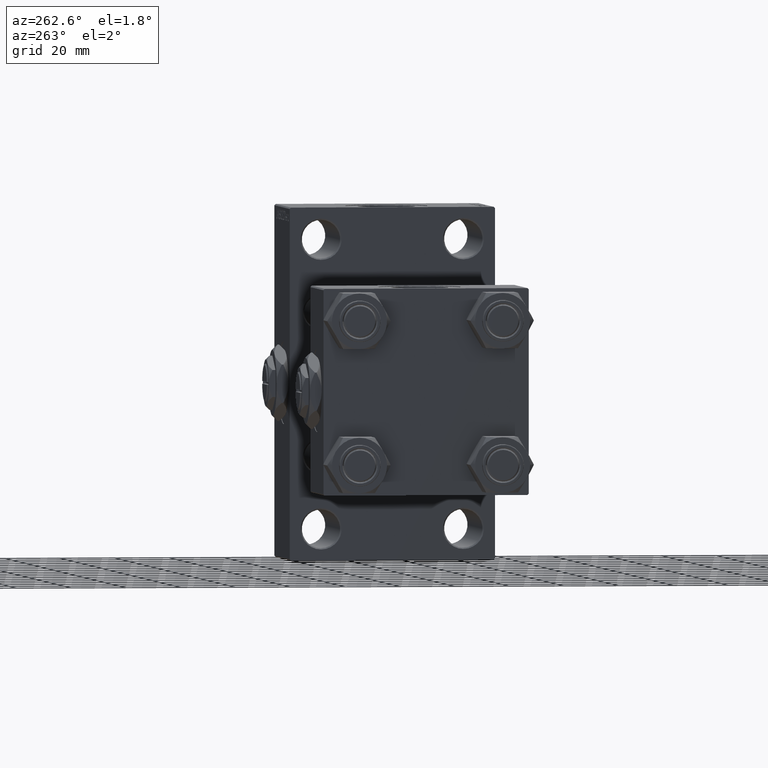
[diagram: clean part render]
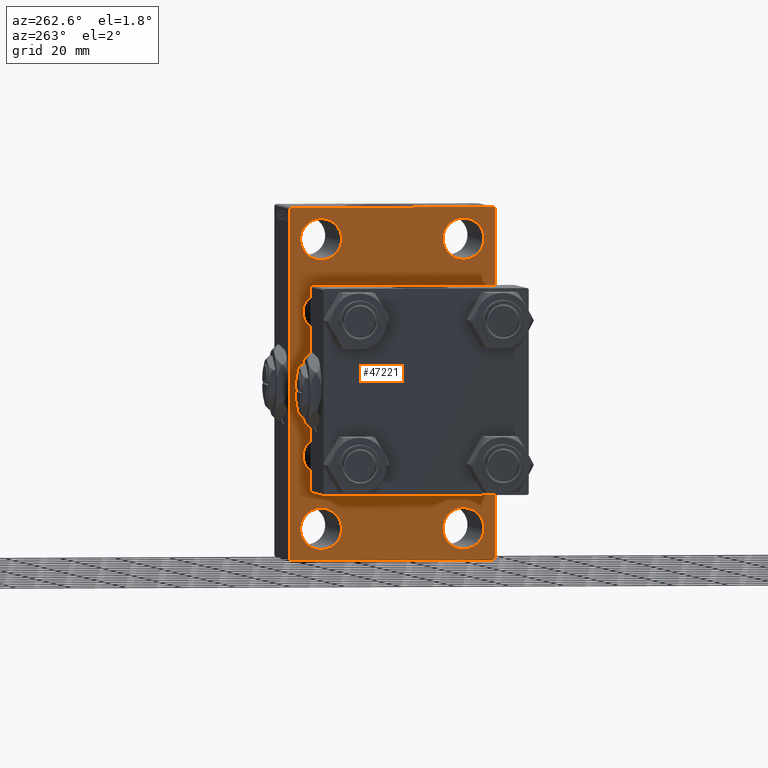
[diagram: same view with one face highlighted and labeled with its STEP entity id]
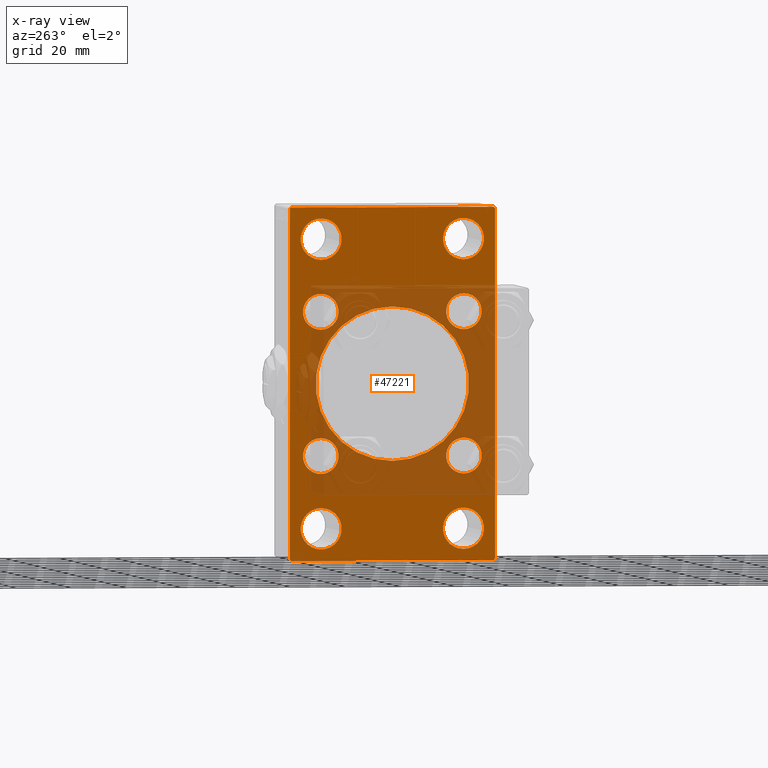
[diagram: x-ray of the same camera — body ghosted, the highlighted face saturated]
A machine part, auxiliary view. The second image highlights one B-rep face of the part: STEP entity #47221.
The next image is the same camera in x-ray: the body ghosted, the highlighted face saturated — about 39% of this face is hidden behind the body in this view.
In plain terms, the highlighted planar face has unit normal (-1, 0, 0).
Its self-contained STEP definition (entity closure, byte-faithful):
#254 = DIRECTION ( 'NONE',  ( 1.000000000000000000, -0.000000000000000000, 0.000000000000000000 ) ) ;
#761 = VECTOR ( 'NONE', #17464, 1000.000000000000000 ) ;
#808 = FACE_BOUND ( 'NONE', #2373, .T. ) ;
#866 = VERTEX_POINT ( 'NONE', #36061 ) ;
#1117 = ORIENTED_EDGE ( 'NONE', *, *, #19064, .F. ) ;
#1169 = CIRCLE ( 'NONE', #34909, 6.500000000000008882 ) ;
#1288 = DIRECTION ( 'NONE',  ( 0.000000000000000000, -1.000000000000000000, -1.850371707708594563E-16 ) ) ;
#1372 = CARTESIAN_POINT ( 'NONE',  ( 95.00000000000000000, 26.14999999999999858, 26.15000000000000213 ) ) ;
#1420 = DIRECTION ( 'NONE',  ( 0.000000000000000000, 0.000000000000000000, 1.000000000000000000 ) ) ;
#1566 = ORIENTED_EDGE ( 'NONE', *, *, #27744, .F. ) ;
#1590 = ORIENTED_EDGE ( 'NONE', *, *, #44659, .T. ) ;
#1685 = EDGE_CURVE ( 'NONE', #866, #32973, #24976, .T. ) ;
#2306 = FACE_BOUND ( 'NONE', #32498, .T. ) ;
#2373 = EDGE_LOOP ( 'NONE', ( #16908, #23228 ) ) ;
#2672 = CARTESIAN_POINT ( 'NONE',  ( 95.00000000000000000, 26.00000000000000000, -52.49999999999999289 ) ) ;
#3414 = CIRCLE ( 'NONE', #20259, 7.499999999999978684 ) ;
#3416 = DIRECTION ( 'NONE',  ( 0.000000000000000000, 0.000000000000000000, 1.000000000000000000 ) ) ;
#3449 = AXIS2_PLACEMENT_3D ( 'NONE', #6963, #45431, #30078 ) ;
#4299 = AXIS2_PLACEMENT_3D ( 'NONE', #30490, #34022, #38305 ) ;
#4501 = VERTEX_POINT ( 'NONE', #22935 ) ;
#4815 = LINE ( 'NONE', #47061, #28297 ) ;
#5201 = DIRECTION ( 'NONE',  ( 0.000000000000000000, 0.000000000000000000, 1.000000000000000000 ) ) ;
#5209 = EDGE_CURVE ( 'NONE', #28940, #9850, #3414, .T. ) ;
#5225 = CIRCLE ( 'NONE', #9286, 7.499999999999978684 ) ;
#5646 = VERTEX_POINT ( 'NONE', #28049 ) ;
#5783 = ORIENTED_EDGE ( 'NONE', *, *, #14398, .T. ) ;
#6444 = DIRECTION ( 'NONE',  ( 0.000000000000000000, 0.000000000000000000, 1.000000000000000000 ) ) ;
#6489 = CARTESIAN_POINT ( 'NONE',  ( 95.00000000000000000, 26.00000000000000000, 59.99999999999997158 ) ) ;
#6573 = FACE_BOUND ( 'NONE', #43842, .T. ) ;
#6866 = DIRECTION ( 'NONE',  ( 0.000000000000000000, 0.000000000000000000, 1.000000000000000000 ) ) ;
#6963 = CARTESIAN_POINT ( 'NONE',  ( 95.00000000000000000, -2.602085213965210642E-15, 0.000000000000000000 ) ) ;
#7030 = CARTESIAN_POINT ( 'NONE',  ( 95.00000000000000000, -2.602085213965210642E-15, 0.000000000000000000 ) ) ;
#7574 = CARTESIAN_POINT ( 'NONE',  ( 95.00000000000000000, -36.99999999999993605, -64.00000000000001421 ) ) ;
#7582 = EDGE_CURVE ( 'NONE', #40314, #13848, #32371, .T. ) ;
#7784 = CIRCLE ( 'NONE', #35885, 6.500000000000008882 ) ;
#7811 = CARTESIAN_POINT ( 'NONE',  ( 95.00000000000000000, -26.14999999999999147, 26.15000000000000924 ) ) ;
#8133 = ORIENTED_EDGE ( 'NONE', *, *, #8992, .T. ) ;
#8874 = VECTOR ( 'NONE', #37713, 999.9999999999998863 ) ;
#8962 = DIRECTION ( 'NONE',  ( 1.000000000000000000, -0.000000000000000000, 0.000000000000000000 ) ) ;
#8992 = EDGE_CURVE ( 'NONE', #18260, #41726, #16285, .T. ) ;
#9251 = DIRECTION ( 'NONE',  ( 1.000000000000000000, -0.000000000000000000, 0.000000000000000000 ) ) ;
#9286 = AXIS2_PLACEMENT_3D ( 'NONE', #30805, #37621, #46158 ) ;
#9570 = CARTESIAN_POINT ( 'NONE',  ( 95.00000000000000000, -26.14999999999999147, -26.15000000000000924 ) ) ;
#9776 = CARTESIAN_POINT ( 'NONE',  ( 95.00000000000000000, 37.49999999999999289, -63.50000000000001421 ) ) ;
#9850 = VERTEX_POINT ( 'NONE', #44705 ) ;
#9966 = CARTESIAN_POINT ( 'NONE',  ( 95.00000000000000000, 26.14999999999999858, -26.15000000000000213 ) ) ;
#10361 = DIRECTION ( 'NONE',  ( 0.000000000000000000, -5.421010862427522170E-17, -1.000000000000000000 ) ) ;
#10620 = ORIENTED_EDGE ( 'NONE', *, *, #26651, .T. ) ;
#10703 = AXIS2_PLACEMENT_3D ( 'NONE', #46944, #8962, #1420 ) ;
#10922 = CARTESIAN_POINT ( 'NONE',  ( 95.00000000000000000, 26.00000000000000000, 52.49999999999999289 ) ) ;
#11272 = DIRECTION ( 'NONE',  ( 1.000000000000000000, -0.000000000000000000, 0.000000000000000000 ) ) ;
#11445 = ORIENTED_EDGE ( 'NONE', *, *, #24025, .T. ) ;
#11558 = CIRCLE ( 'NONE', #29989, 7.499999999999978684 ) ;
#12287 = LINE ( 'NONE', #28622, #43201 ) ;
#12439 = EDGE_LOOP ( 'NONE', ( #28540, #1590 ) ) ;
#12509 = CIRCLE ( 'NONE', #18136, 28.00000000000000000 ) ;
#12782 = CARTESIAN_POINT ( 'NONE',  ( 95.00000000000000000, -2.602085213965210642E-15, 28.00000000000000000 ) ) ;
#12874 = FACE_BOUND ( 'NONE', #40336, .T. ) ;
#13202 = AXIS2_PLACEMENT_3D ( 'NONE', #22070, #45216, #33641 ) ;
#13506 = EDGE_CURVE ( 'NONE', #17488, #5646, #38122, .T. ) ;
#13585 = VERTEX_POINT ( 'NONE', #46210 ) ;
#13598 = DIRECTION ( 'NONE',  ( 1.000000000000000000, -0.000000000000000000, 0.000000000000000000 ) ) ;
#13848 = VERTEX_POINT ( 'NONE', #41128 ) ;
#13892 = EDGE_CURVE ( 'NONE', #5646, #17488, #14040, .T. ) ;
#14040 = CIRCLE ( 'NONE', #15637, 6.500000000000008882 ) ;
#14320 = DIRECTION ( 'NONE',  ( 1.000000000000000000, 0.000000000000000000, 0.000000000000000000 ) ) ;
#14362 = FACE_OUTER_BOUND ( 'NONE', #45156, .T. ) ;
#14398 = EDGE_CURVE ( 'NONE', #13848, #40314, #41350, .T. ) ;
#14599 = CARTESIAN_POINT ( 'NONE',  ( 95.00000000000000000, 26.14999999999999858, 32.65000000000001990 ) ) ;
#15061 = DIRECTION ( 'NONE',  ( 0.000000000000000000, 0.000000000000000000, -1.000000000000000000 ) ) ;
#15140 = VERTEX_POINT ( 'NONE', #49650 ) ;
#15324 = AXIS2_PLACEMENT_3D ( 'NONE', #2672, #41638, #3416 ) ;
#15637 = AXIS2_PLACEMENT_3D ( 'NONE', #9966, #37110, #33824 ) ;
#15803 = VERTEX_POINT ( 'NONE', #22028 ) ;
#16101 = EDGE_CURVE ( 'NONE', #13585, #41788, #41034, .T. ) ;
#16199 = DIRECTION ( 'NONE',  ( 0.000000000000000000, 0.000000000000000000, 1.000000000000000000 ) ) ;
#16285 = CIRCLE ( 'NONE', #3449, 28.00000000000000000 ) ;
#16366 = CARTESIAN_POINT ( 'NONE',  ( 95.00000000000000000, -26.14999999999999147, 19.65000000000000213 ) ) ;
#16565 = CARTESIAN_POINT ( 'NONE',  ( 95.00000000000000000, 8.269258236473776482E-16, -28.00000000000000000 ) ) ;
#16661 = EDGE_LOOP ( 'NONE', ( #47423, #38397 ) ) ;
#16725 = EDGE_CURVE ( 'NONE', #30399, #18658, #24202, .T. ) ;
#16908 = ORIENTED_EDGE ( 'NONE', *, *, #25747, .T. ) ;
#17464 = DIRECTION ( 'NONE',  ( 0.000000000000000000, -1.000000000000000000, -1.850371707708594563E-16 ) ) ;
#17488 = VERTEX_POINT ( 'NONE', #33379 ) ;
#17817 = CARTESIAN_POINT ( 'NONE',  ( 95.00000000000000000, -37.49999999999999289, 63.49999999999994316 ) ) ;
#18136 = AXIS2_PLACEMENT_3D ( 'NONE', #7030, #14320, #15061 ) ;
#18260 = VERTEX_POINT ( 'NONE', #12782 ) ;
#18327 = VERTEX_POINT ( 'NONE', #6489 ) ;
#18658 = VERTEX_POINT ( 'NONE', #34065 ) ;
#19064 = EDGE_CURVE ( 'NONE', #15803, #20130, #4815, .T. ) ;
#19102 = LINE ( 'NONE', #45267, #8874 ) ;
#19243 = VECTOR ( 'NONE', #38763, 1000.000000000000000 ) ;
#19502 = CARTESIAN_POINT ( 'NONE',  ( 95.00000000000000000, 26.00000000000000000, -59.99999999999997158 ) ) ;
#19776 = EDGE_CURVE ( 'NONE', #9850, #28940, #24312, .T. ) ;
#20130 = VERTEX_POINT ( 'NONE', #49059 ) ;
#20259 = AXIS2_PLACEMENT_3D ( 'NONE', #47956, #32852, #5201 ) ;
#20495 = VECTOR ( 'NONE', #10361, 1000.000000000000000 ) ;
#20797 = DIRECTION ( 'NONE',  ( 0.000000000000000000, 0.000000000000000000, 1.000000000000000000 ) ) ;
#21199 = EDGE_CURVE ( 'NONE', #29182, #4501, #25971, .T. ) ;
#21221 = DIRECTION ( 'NONE',  ( 0.000000000000000000, 0.000000000000000000, 1.000000000000000000 ) ) ;
#21340 = VECTOR ( 'NONE', #23828, 1000.000000000000000 ) ;
#21381 = CARTESIAN_POINT ( 'NONE',  ( 95.00000000000000000, 26.14999999999999858, 26.15000000000000213 ) ) ;
#22028 = CARTESIAN_POINT ( 'NONE',  ( 95.00000000000000000, 36.99999999999997158, 63.99999999999998579 ) ) ;
#22070 = CARTESIAN_POINT ( 'NONE',  ( 95.00000000000000000, 26.14999999999999858, -26.15000000000000213 ) ) ;
#22470 = ORIENTED_EDGE ( 'NONE', *, *, #13892, .T. ) ;
#22935 = CARTESIAN_POINT ( 'NONE',  ( 95.00000000000000000, -25.99999999999999645, -45.00000000000001421 ) ) ;
#23228 = ORIENTED_EDGE ( 'NONE', *, *, #21199, .T. ) ;
#23313 = DIRECTION ( 'NONE',  ( 0.000000000000000000, 0.000000000000000000, 1.000000000000000000 ) ) ;
#23776 = VECTOR ( 'NONE', #45247, 1000.000000000000000 ) ;
#23828 = DIRECTION ( 'NONE',  ( -0.000000000000000000, -0.7071067811865573427, -0.7071067811865378028 ) ) ;
#24025 = EDGE_CURVE ( 'NONE', #37114, #37348, #1169, .T. ) ;
#24081 = EDGE_CURVE ( 'NONE', #18658, #30399, #33298, .T. ) ;
#24150 = DIRECTION ( 'NONE',  ( 0.000000000000000000, 0.000000000000000000, 1.000000000000000000 ) ) ;
#24202 = CIRCLE ( 'NONE', #35559, 6.500000000000008882 ) ;
#24239 = DIRECTION ( 'NONE',  ( 1.000000000000000000, -0.000000000000000000, 0.000000000000000000 ) ) ;
#24312 = CIRCLE ( 'NONE', #37186, 7.499999999999978684 ) ;
#24541 = DIRECTION ( 'NONE',  ( 1.000000000000000000, -0.000000000000000000, 0.000000000000000000 ) ) ;
#24976 = CIRCLE ( 'NONE', #15324, 7.499999999999978684 ) ;
#25747 = EDGE_CURVE ( 'NONE', #4501, #29182, #5225, .T. ) ;
#25920 = DIRECTION ( 'NONE',  ( -1.000000000000000000, 0.000000000000000000, -0.000000000000000000 ) ) ;
#25971 = CIRCLE ( 'NONE', #4299, 7.499999999999978684 ) ;
#26186 = CARTESIAN_POINT ( 'NONE',  ( 95.00000000000000000, 37.50000000000000000, 63.99999999999998579 ) ) ;
#26417 = ORIENTED_EDGE ( 'NONE', *, *, #40583, .T. ) ;
#26651 = EDGE_CURVE ( 'NONE', #41788, #15140, #38924, .T. ) ;
#26962 = DIRECTION ( 'NONE',  ( 1.000000000000000000, -0.000000000000000000, 0.000000000000000000 ) ) ;
#27599 = CARTESIAN_POINT ( 'NONE',  ( 95.00000000000000000, 50.49999999999948841, -50.50000000000088107 ) ) ;
#27625 = EDGE_CURVE ( 'NONE', #41726, #18260, #12509, .T. ) ;
#27744 = EDGE_CURVE ( 'NONE', #38510, #29327, #49026, .T. ) ;
#28049 = CARTESIAN_POINT ( 'NONE',  ( 95.00000000000000000, 26.14999999999999858, -19.64999999999999503 ) ) ;
#28297 = VECTOR ( 'NONE', #1288, 1000.000000000000000 ) ;
#28364 = EDGE_CURVE ( 'NONE', #18327, #46604, #49554, .T. ) ;
#28540 = ORIENTED_EDGE ( 'NONE', *, *, #1685, .T. ) ;
#28622 = CARTESIAN_POINT ( 'NONE',  ( 95.00000000000000000, 50.49999999999894840, 50.50000000000176215 ) ) ;
#28713 = CARTESIAN_POINT ( 'NONE',  ( 95.00000000000000000, 0.000000000000000000, 0.000000000000000000 ) ) ;
#28940 = VERTEX_POINT ( 'NONE', #42989 ) ;
#29064 = CARTESIAN_POINT ( 'NONE',  ( 95.00000000000000000, 26.00000000000000000, 52.49999999999999289 ) ) ;
#29182 = VERTEX_POINT ( 'NONE', #39399 ) ;
#29316 = CIRCLE ( 'NONE', #49410, 7.499999999999978684 ) ;
#29327 = VERTEX_POINT ( 'NONE', #48208 ) ;
#29653 = ORIENTED_EDGE ( 'NONE', *, *, #24081, .T. ) ;
#29708 = EDGE_CURVE ( 'NONE', #37348, #37114, #7784, .T. ) ;
#29893 = CARTESIAN_POINT ( 'NONE',  ( 95.00000000000000000, -37.49999999999999289, 63.99999999999997158 ) ) ;
#29989 = AXIS2_PLACEMENT_3D ( 'NONE', #37923, #11272, #23313 ) ;
#30009 = DIRECTION ( 'NONE',  ( 1.000000000000000000, -0.000000000000000000, 0.000000000000000000 ) ) ;
#30078 = DIRECTION ( 'NONE',  ( 0.000000000000000000, 0.000000000000000000, -1.000000000000000000 ) ) ;
#30399 = VERTEX_POINT ( 'NONE', #44430 ) ;
#30490 = CARTESIAN_POINT ( 'NONE',  ( 95.00000000000000000, -25.99999999999999645, -52.49999999999999289 ) ) ;
#30805 = CARTESIAN_POINT ( 'NONE',  ( 95.00000000000000000, -25.99999999999999645, -52.49999999999999289 ) ) ;
#30889 = AXIS2_PLACEMENT_3D ( 'NONE', #9570, #43274, #35730 ) ;
#30930 = AXIS2_PLACEMENT_3D ( 'NONE', #7811, #254, #38241 ) ;
#31048 = ORIENTED_EDGE ( 'NONE', *, *, #39141, .T. ) ;
#31638 = DIRECTION ( 'NONE',  ( 0.000000000000000000, 0.7071067811865672237, -0.7071067811865279218 ) ) ;
#32011 = EDGE_LOOP ( 'NONE', ( #5783, #39592 ) ) ;
#32371 = CIRCLE ( 'NONE', #10703, 6.500000000000008882 ) ;
#32498 = EDGE_LOOP ( 'NONE', ( #40612, #11445 ) ) ;
#32852 = DIRECTION ( 'NONE',  ( 1.000000000000000000, -0.000000000000000000, 0.000000000000000000 ) ) ;
#32973 = VERTEX_POINT ( 'NONE', #19502 ) ;
#33298 = CIRCLE ( 'NONE', #30889, 6.500000000000008882 ) ;
#33379 = CARTESIAN_POINT ( 'NONE',  ( 95.00000000000000000, 26.14999999999999858, -32.65000000000001279 ) ) ;
#33641 = DIRECTION ( 'NONE',  ( 0.000000000000000000, 0.000000000000000000, 1.000000000000000000 ) ) ;
#33824 = DIRECTION ( 'NONE',  ( 0.000000000000000000, 0.000000000000000000, 1.000000000000000000 ) ) ;
#34022 = DIRECTION ( 'NONE',  ( 1.000000000000000000, -0.000000000000000000, 0.000000000000000000 ) ) ;
#34065 = CARTESIAN_POINT ( 'NONE',  ( 95.00000000000000000, -26.14999999999999147, -19.65000000000000213 ) ) ;
#34173 = CARTESIAN_POINT ( 'NONE',  ( 95.00000000000000000, -26.14999999999999147, -26.15000000000000924 ) ) ;
#34253 = LINE ( 'NONE', #38280, #19243 ) ;
#34909 = AXIS2_PLACEMENT_3D ( 'NONE', #21381, #13598, #24150 ) ;
#35261 = FACE_BOUND ( 'NONE', #16661, .T. ) ;
#35559 = AXIS2_PLACEMENT_3D ( 'NONE', #34173, #9251, #20797 ) ;
#35702 = AXIS2_PLACEMENT_3D ( 'NONE', #28713, #25920, #37249 ) ;
#35730 = DIRECTION ( 'NONE',  ( 0.000000000000000000, 0.000000000000000000, 1.000000000000000000 ) ) ;
#35885 = AXIS2_PLACEMENT_3D ( 'NONE', #1372, #24239, #16199 ) ;
#35927 = EDGE_CURVE ( 'NONE', #15803, #13585, #12287, .T. ) ;
#36061 = CARTESIAN_POINT ( 'NONE',  ( 95.00000000000000000, 26.00000000000000000, -45.00000000000001421 ) ) ;
#37110 = DIRECTION ( 'NONE',  ( 1.000000000000000000, -0.000000000000000000, 0.000000000000000000 ) ) ;
#37114 = VERTEX_POINT ( 'NONE', #42071 ) ;
#37186 = AXIS2_PLACEMENT_3D ( 'NONE', #49117, #26962, #6866 ) ;
#37249 = DIRECTION ( 'NONE',  ( -0.000000000000000000, 0.000000000000000000, 1.000000000000000000 ) ) ;
#37348 = VERTEX_POINT ( 'NONE', #14599 ) ;
#37621 = DIRECTION ( 'NONE',  ( 1.000000000000000000, -0.000000000000000000, 0.000000000000000000 ) ) ;
#37713 = DIRECTION ( 'NONE',  ( 0.000000000000000000, -0.7071067811865574537, 0.7071067811865376918 ) ) ;
#37923 = CARTESIAN_POINT ( 'NONE',  ( 95.00000000000000000, 26.00000000000000000, -52.49999999999999289 ) ) ;
#38122 = CIRCLE ( 'NONE', #13202, 6.500000000000008882 ) ;
#38241 = DIRECTION ( 'NONE',  ( 0.000000000000000000, 0.000000000000000000, 1.000000000000000000 ) ) ;
#38280 = CARTESIAN_POINT ( 'NONE',  ( 95.00000000000000000, -50.49999999999970868, 50.50000000000040501 ) ) ;
#38305 = DIRECTION ( 'NONE',  ( 0.000000000000000000, 0.000000000000000000, 1.000000000000000000 ) ) ;
#38397 = ORIENTED_EDGE ( 'NONE', *, *, #19776, .T. ) ;
#38510 = VERTEX_POINT ( 'NONE', #17817 ) ;
#38763 = DIRECTION ( 'NONE',  ( -0.000000000000000000, 0.7071067811865524577, 0.7071067811865426878 ) ) ;
#38785 = ORIENTED_EDGE ( 'NONE', *, *, #40171, .T. ) ;
#38924 = LINE ( 'NONE', #27599, #21340 ) ;
#39141 = EDGE_CURVE ( 'NONE', #15140, #48175, #47911, .T. ) ;
#39399 = CARTESIAN_POINT ( 'NONE',  ( 95.00000000000000000, -25.99999999999999645, -59.99999999999997158 ) ) ;
#39592 = ORIENTED_EDGE ( 'NONE', *, *, #7582, .T. ) ;
#40150 = ORIENTED_EDGE ( 'NONE', *, *, #13506, .T. ) ;
#40171 = EDGE_CURVE ( 'NONE', #38510, #20130, #34253, .T. ) ;
#40303 = ORIENTED_EDGE ( 'NONE', *, *, #28364, .T. ) ;
#40314 = VERTEX_POINT ( 'NONE', #16366 ) ;
#40336 = EDGE_LOOP ( 'NONE', ( #40303, #42340 ) ) ;
#40583 = EDGE_CURVE ( 'NONE', #48175, #29327, #19102, .T. ) ;
#40612 = ORIENTED_EDGE ( 'NONE', *, *, #29708, .T. ) ;
#40706 = AXIS2_PLACEMENT_3D ( 'NONE', #29064, #24541, #6444 ) ;
#41034 = LINE ( 'NONE', #26186, #20495 ) ;
#41128 = CARTESIAN_POINT ( 'NONE',  ( 95.00000000000000000, -26.14999999999999147, 32.65000000000001990 ) ) ;
#41350 = CIRCLE ( 'NONE', #30930, 6.500000000000008882 ) ;
#41473 = ORIENTED_EDGE ( 'NONE', *, *, #27625, .T. ) ;
#41638 = DIRECTION ( 'NONE',  ( 1.000000000000000000, -0.000000000000000000, 0.000000000000000000 ) ) ;
#41725 = EDGE_LOOP ( 'NONE', ( #29653, #42586 ) ) ;
#41726 = VERTEX_POINT ( 'NONE', #16565 ) ;
#41788 = VERTEX_POINT ( 'NONE', #9776 ) ;
#42071 = CARTESIAN_POINT ( 'NONE',  ( 95.00000000000000000, 26.14999999999999858, 19.64999999999999147 ) ) ;
#42340 = ORIENTED_EDGE ( 'NONE', *, *, #47910, .T. ) ;
#42586 = ORIENTED_EDGE ( 'NONE', *, *, #16725, .T. ) ;
#42989 = CARTESIAN_POINT ( 'NONE',  ( 95.00000000000000000, -25.99999999999999645, 59.99999999999997868 ) ) ;
#43201 = VECTOR ( 'NONE', #31638, 1000.000000000000000 ) ;
#43274 = DIRECTION ( 'NONE',  ( 1.000000000000000000, -0.000000000000000000, 0.000000000000000000 ) ) ;
#43552 = FACE_BOUND ( 'NONE', #32011, .T. ) ;
#43842 = EDGE_LOOP ( 'NONE', ( #8133, #41473 ) ) ;
#44430 = CARTESIAN_POINT ( 'NONE',  ( 95.00000000000000000, -26.14999999999999147, -32.65000000000001990 ) ) ;
#44551 = FACE_BOUND ( 'NONE', #48361, .T. ) ;
#44630 = CARTESIAN_POINT ( 'NONE',  ( 95.00000000000000000, 37.49999999999999289, -64.00000000000000000 ) ) ;
#44659 = EDGE_CURVE ( 'NONE', #32973, #866, #11558, .T. ) ;
#44679 = CARTESIAN_POINT ( 'NONE',  ( 95.00000000000000000, 26.00000000000000000, 45.00000000000001421 ) ) ;
#44705 = CARTESIAN_POINT ( 'NONE',  ( 95.00000000000000000, -25.99999999999999645, 45.00000000000002132 ) ) ;
#45156 = EDGE_LOOP ( 'NONE', ( #31048, #26417, #1566, #38785, #1117, #49560, #49786, #10620 ) ) ;
#45216 = DIRECTION ( 'NONE',  ( 1.000000000000000000, -0.000000000000000000, 0.000000000000000000 ) ) ;
#45247 = DIRECTION ( 'NONE',  ( 0.000000000000000000, 0.000000000000000000, -1.000000000000000000 ) ) ;
#45267 = CARTESIAN_POINT ( 'NONE',  ( 95.00000000000000000, -50.49999999999945999, -50.50000000000086686 ) ) ;
#45431 = DIRECTION ( 'NONE',  ( 1.000000000000000000, 0.000000000000000000, 0.000000000000000000 ) ) ;
#46158 = DIRECTION ( 'NONE',  ( 0.000000000000000000, 0.000000000000000000, 1.000000000000000000 ) ) ;
#46210 = CARTESIAN_POINT ( 'NONE',  ( 95.00000000000000000, 37.50000000000000000, 63.49999999999998579 ) ) ;
#46604 = VERTEX_POINT ( 'NONE', #44679 ) ;
#46944 = CARTESIAN_POINT ( 'NONE',  ( 95.00000000000000000, -26.14999999999999147, 26.15000000000000924 ) ) ;
#47061 = CARTESIAN_POINT ( 'NONE',  ( 95.00000000000000000, 37.50000000000000000, 63.99999999999998579 ) ) ;
#47221 = ADVANCED_FACE ( 'NONE', ( #35261, #808, #47335, #12874, #43552, #2306, #44551, #47833, #6573, #14362 ), #48584, .T. ) ;
#47335 = FACE_BOUND ( 'NONE', #12439, .T. ) ;
#47423 = ORIENTED_EDGE ( 'NONE', *, *, #5209, .T. ) ;
#47833 = FACE_BOUND ( 'NONE', #41725, .T. ) ;
#47910 = EDGE_CURVE ( 'NONE', #46604, #18327, #29316, .T. ) ;
#47911 = LINE ( 'NONE', #44630, #761 ) ;
#47956 = CARTESIAN_POINT ( 'NONE',  ( 95.00000000000000000, -25.99999999999999645, 52.50000000000000000 ) ) ;
#48175 = VERTEX_POINT ( 'NONE', #7574 ) ;
#48208 = CARTESIAN_POINT ( 'NONE',  ( 95.00000000000000000, -37.49999999999999289, -63.49999999999997158 ) ) ;
#48361 = EDGE_LOOP ( 'NONE', ( #22470, #40150 ) ) ;
#48584 = PLANE ( 'NONE',  #35702 ) ;
#49026 = LINE ( 'NONE', #29893, #23776 ) ;
#49059 = CARTESIAN_POINT ( 'NONE',  ( 95.00000000000000000, -36.99999999999995737, 63.99999999999997158 ) ) ;
#49117 = CARTESIAN_POINT ( 'NONE',  ( 95.00000000000000000, -25.99999999999999645, 52.50000000000000000 ) ) ;
#49410 = AXIS2_PLACEMENT_3D ( 'NONE', #10922, #30009, #21221 ) ;
#49554 = CIRCLE ( 'NONE', #40706, 7.499999999999978684 ) ;
#49560 = ORIENTED_EDGE ( 'NONE', *, *, #35927, .T. ) ;
#49650 = CARTESIAN_POINT ( 'NONE',  ( 95.00000000000000000, 36.99999999999999289, -64.00000000000000000 ) ) ;
#49786 = ORIENTED_EDGE ( 'NONE', *, *, #16101, .T. ) ;